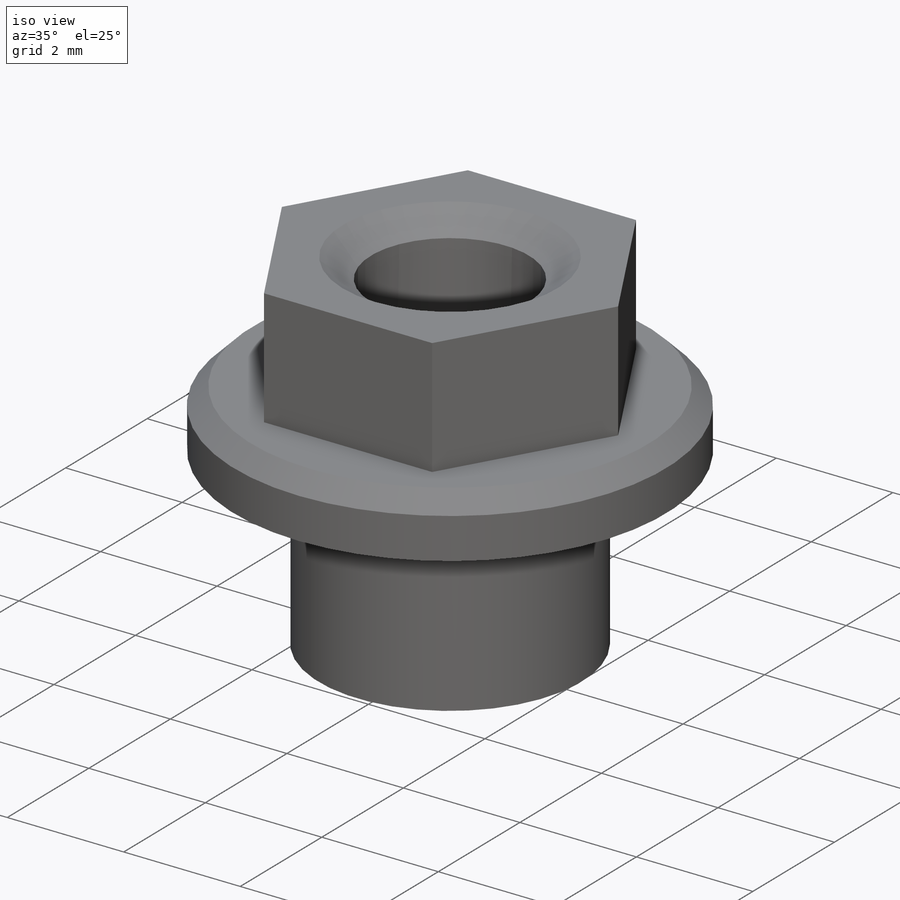
[diagram: iso view]
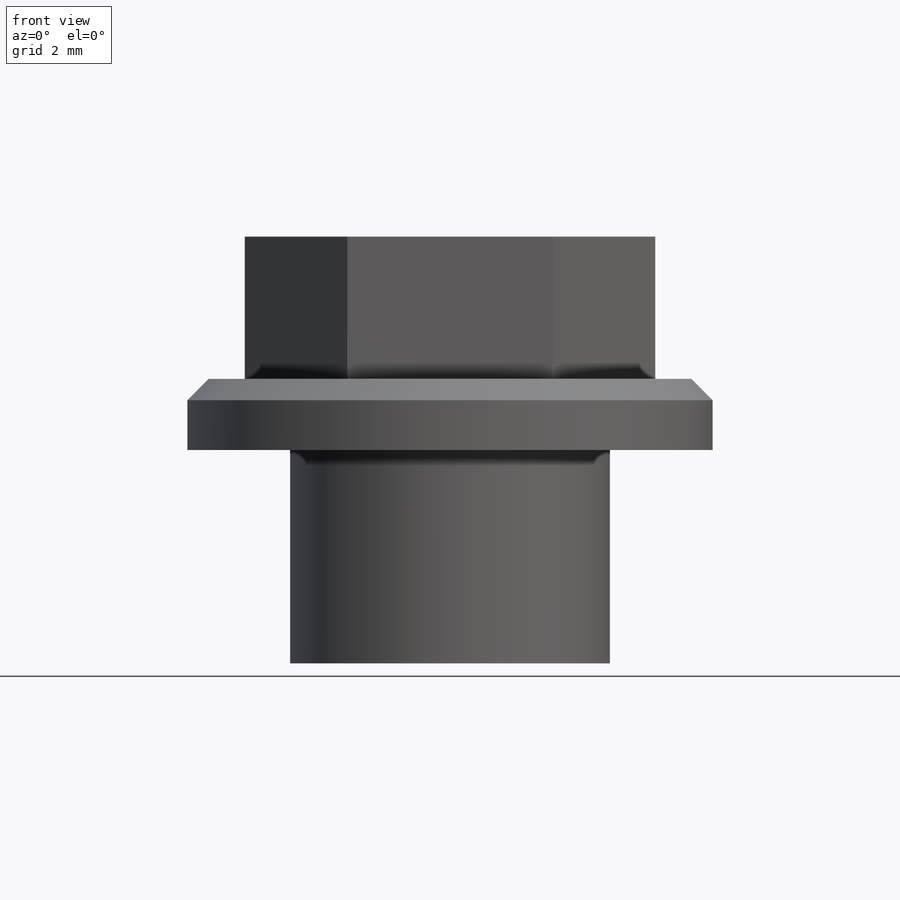
[diagram: front view]
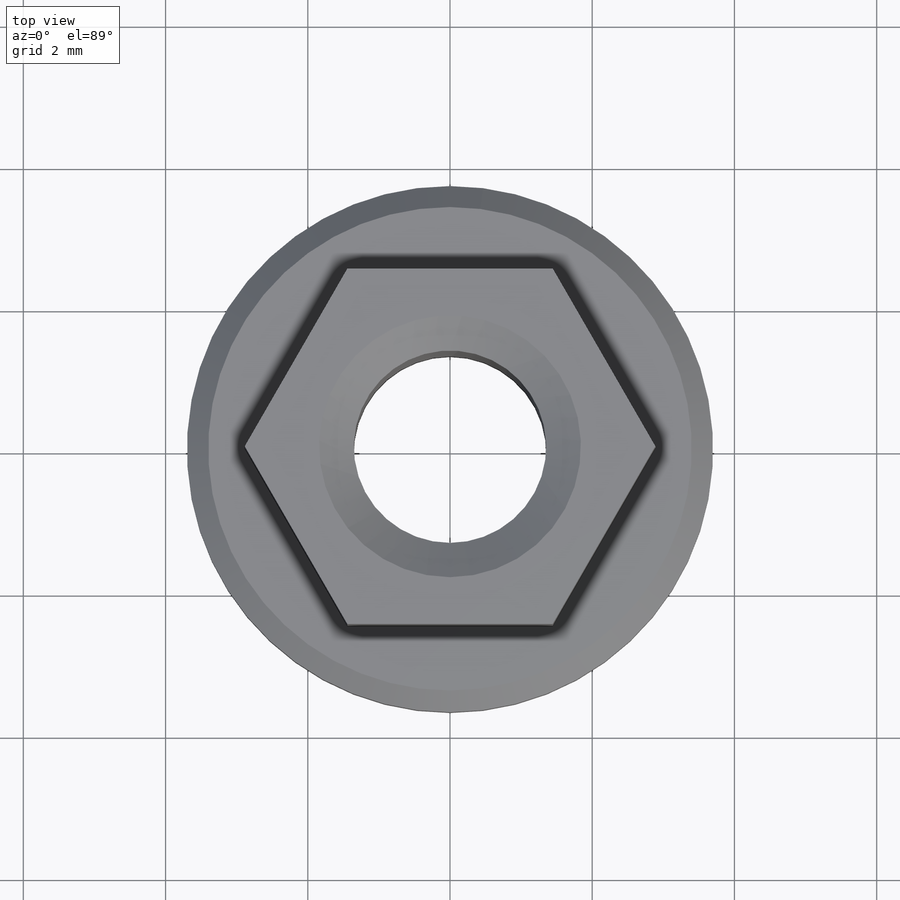
[diagram: top view]
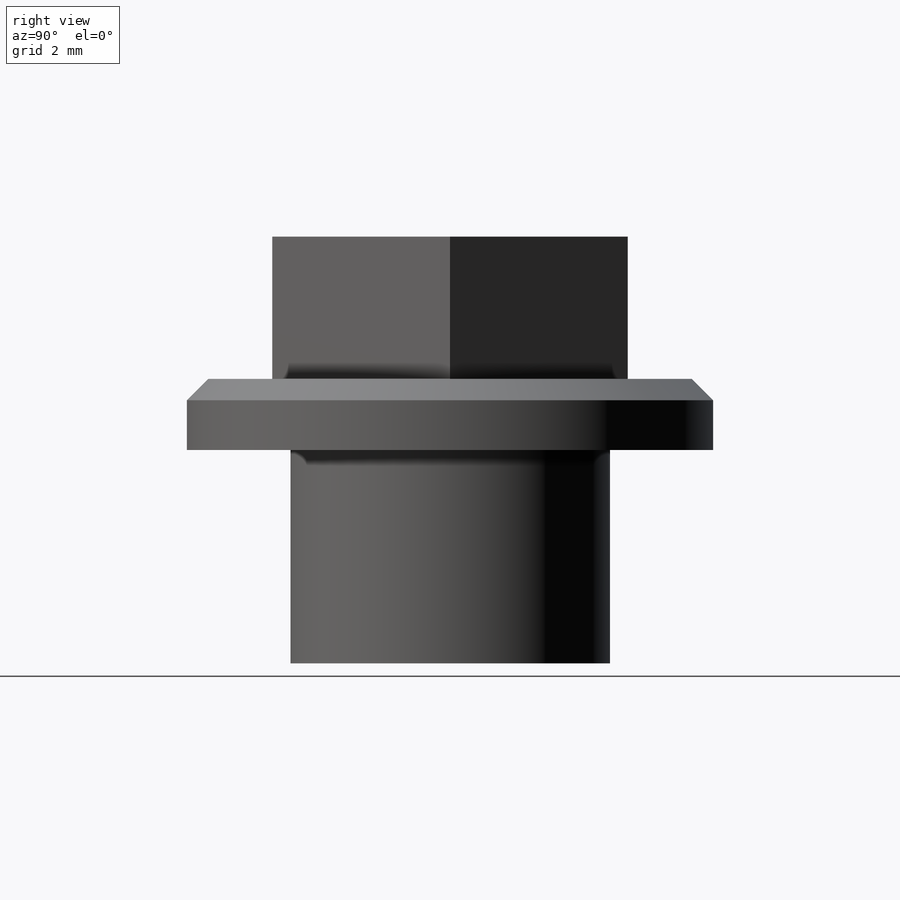
[diagram: right view]
SOLIDWORKS PART (.sldprt)
format: sldprt  version: not decoded by parser v0  size: 239,616 bytes
history: native  units: mm
features: sketch x6, plane x3, hole x2, material x1, revolve x1, cut_extrude x1, chamfer x1 (+13 scaffold rows collapsed)
feature tree (28):
  scaffold x13  (default folders/planes/origin — collapsed)
  material  "Материал <не указан>"
  plane  "Спереди"
  plane  "Сверху"
  plane  "Справа"
  sketch  "Эскиз1"  dims[c1.D1=2.8mm c1.D2=4.5mm c1.D3=~0.588905mm c2.D3=45.0deg c2.D4=~0.650674mm c3.D4=45.0deg c3.D5=~0.650674mm c4.D5=45.0deg c5.D5=~0.650674mm c6.D5=45.0deg c6.D6=0.2mm c6.D7=7.4mm c6.D8=3.0mm c6.D9=6.0mm]
  revolve  "Повернуть1"  Angle=360deg
  hole  "Отверстие обработанное метчиком #6-321"  [1 undecoded]
  sketch  "Эскиз4"
  sketch  "Эскиз3"  dims[hole-wizard template sketch: 46 standard entries collapsed; hole parameters kept: c15.Диаметр резьбы=2.7051mm c15.Глубина проходного сверла=6.0mm c15.Диаметр передней зенковки=3.683mm c15.D4=~3.666174mm c15.Угол передней зенковки=110.0deg c15.Диаметр задней зенковки=3.683mm c15.D6=~9.919017mm c15.Угол задней зенковки=110.0deg]
  hole  "Диаметр отверстия Ø1.0 (1)1"  [1 undecoded]
  sketch  "Эскиз6"  dims[D1=2.5mm D2=5.0mm]
  sketch  "Эскиз5"  dims[hole-wizard template sketch: 46 standard entries collapsed; hole parameters kept: c15.Диаметр отверстия=1.0mm c15.Глубина отверстия=1.65mm c15.D3=~14.816244mm c15.Угол заточки сверла=118.0deg]
  sketch  "Эскиз7"  dims[D1=5.0mm]
  cut_extrude  "Вырез-Вытянуть1"  Depth=1mm
  chamfer  "Фаска1"  Distance=0.3mm Angle=45deg
decode coverage: 8 of 11 modeling features carry decoded parameters
note: ~ marks probable driven/reference dimensions
note: 2 parameter values undecoded
note: suppression state not decoded; provenance and decode notes live in map.json
